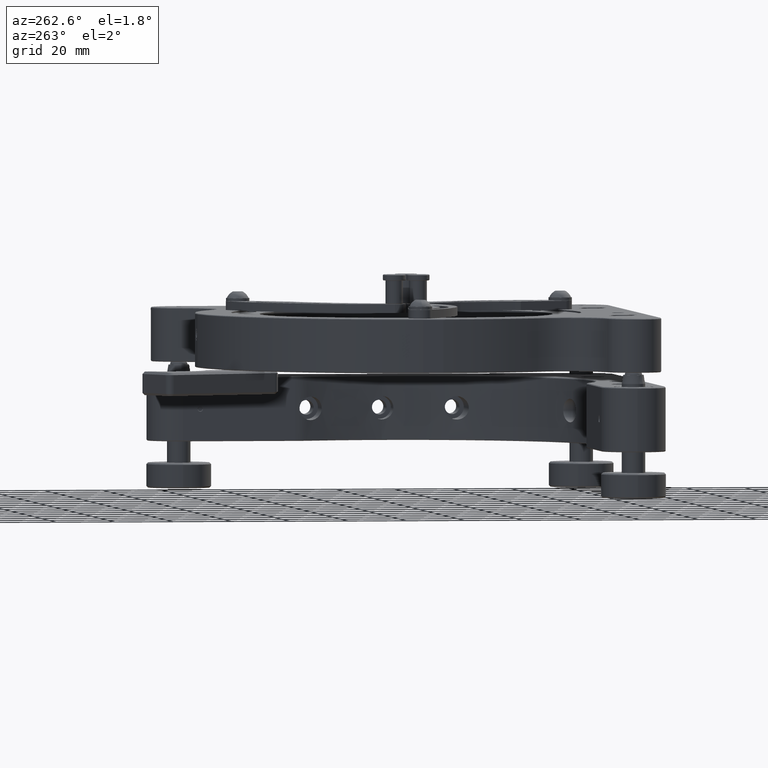
[diagram: clean part render]
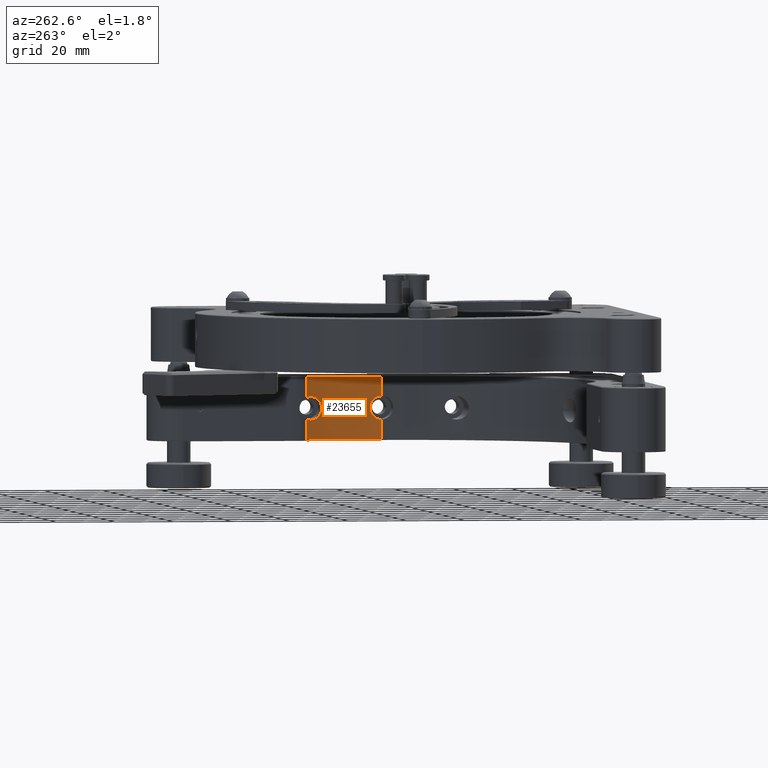
[diagram: same view with one face highlighted and labeled with its STEP entity id]
A machine part, auxiliary view. The second image highlights one B-rep face of the part: STEP entity #23655.
In plain terms, the highlighted cylindrical surface (partial cylindrical patch) has radius 64.5 mm, axis along (0, 0, 1).
Its self-contained STEP definition (entity closure, byte-faithful):
#487 = CARTESIAN_POINT ( 'NONE',  ( 97.33597603896326689, 19.72366855535915064, 70.80497146784718154 ) ) ;
#494 = EDGE_CURVE ( 'NONE', #23611, #5543, #32807, .T. ) ;
#596 = CARTESIAN_POINT ( 'NONE',  ( 97.36688447283495407, 17.71521029692332050, 78.03580865207216277 ) ) ;
#629 = CARTESIAN_POINT ( 'NONE',  ( 93.70315890078724408, 39.14440175768673669, 65.51338114083411313 ) ) ;
#697 = CARTESIAN_POINT ( 'NONE',  ( 97.24438258783752076, 21.68891724327834325, 66.80892322483434498 ) ) ;
#830 = CARTESIAN_POINT ( 'NONE',  ( 93.10583904378145803, 40.77106586904643848, 63.83050261811933268 ) ) ;
#910 = EDGE_CURVE ( 'NONE', #27738, #38953, #20377, .T. ) ;
#1256 = CARTESIAN_POINT ( 'NONE',  ( 92.73399944228148684, 41.72040749266445658, 63.45334916810095649 ) ) ;
#1497 = AXIS2_PLACEMENT_3D ( 'NONE', #30829, #29997, #5169 ) ;
#1674 = CARTESIAN_POINT ( 'NONE',  ( 91.73936769431148264, 44.06441748304114014, 63.57022238046342011 ) ) ;
#1926 = EDGE_CURVE ( 'NONE', #39116, #10374, #16203, .T. ) ;
#2338 = DIRECTION ( 'NONE',  ( 0.000000000000000000, 0.000000000000000000, 1.000000000000000000 ) ) ;
#2685 = CARTESIAN_POINT ( 'NONE',  ( 92.32485282023141338, 42.71521029692335958, 63.33580865207213861 ) ) ;
#2737 = EDGE_CURVE ( 'NONE', #10374, #24506, #28826, .T. ) ;
#3435 = CARTESIAN_POINT ( 'NONE',  ( 97.33615885697525982, 19.71786882270308183, 63.86325062851250323 ) ) ;
#3573 = CARTESIAN_POINT ( 'NONE',  ( 93.48426500526670679, 39.75661668239453661, 70.04046272130622697 ) ) ;
#3635 = CARTESIAN_POINT ( 'NONE',  ( 97.36526029729968457, 18.24099732529743889, 71.30986845294505372 ) ) ;
#3653 = EDGE_CURVE ( 'NONE', #38953, #35598, #23302, .T. ) ;
#3851 = CARTESIAN_POINT ( 'NONE',  ( 97.34303291790808998, 19.48559092561556483, 63.73947585673759875 ) ) ;
#3988 = CARTESIAN_POINT ( 'NONE',  ( 93.54824477278255301, 39.57953871605402441, 64.83788173928552112 ) ) ;
#4037 = EDGE_CURVE ( 'NONE', #5543, #27792, #22082, .T. ) ;
#4054 = DIRECTION ( 'NONE',  ( 1.000000000000000000, 0.000000000000000000, 0.000000000000000000 ) ) ;
#4060 = CARTESIAN_POINT ( 'NONE',  ( 97.29683304081559925, 20.72616271347974504, 64.68965042615795369 ) ) ;
#4191 = CARTESIAN_POINT ( 'NONE',  ( 93.27059021418074281, 40.33591887724991665, 64.11000018156755687 ) ) ;
#4973 = VERTEX_POINT ( 'NONE', #6901 ) ;
#5134 = CARTESIAN_POINT ( 'NONE',  ( 91.73936769431148264, 44.06441748304114014, 56.33580865207213151 ) ) ;
#5169 = DIRECTION ( 'NONE',  ( 1.000000000000000000, -1.775065882394872472E-15, 0.000000000000000000 ) ) ;
#5543 = VERTEX_POINT ( 'NONE', #8030 ) ;
#6381 = CARTESIAN_POINT ( 'NONE',  ( 97.34289550239024891, 19.49056832828132357, 70.92968610241757688 ) ) ;
#6432 = DIRECTION ( 'NONE',  ( -0.000000000000000000, -0.000000000000000000, -1.000000000000000000 ) ) ;
#6504 = CARTESIAN_POINT ( 'NONE',  ( 91.93527675884995176, 43.62342629612098932, 71.23807526134488910 ) ) ;
#6586 = CARTESIAN_POINT ( 'NONE',  ( 97.24274742568391616, 21.71499393137542455, 67.06862893561323347 ) ) ;
#6644 = CARTESIAN_POINT ( 'NONE',  ( 91.73936769431148264, 44.06441748304114014, 56.33580865207213151 ) ) ;
#6724 = CARTESIAN_POINT ( 'NONE',  ( 93.65557037412668251, 39.27933406109144698, 69.40097430472835072 ) ) ;
#6733 = ORIENTED_EDGE ( 'NONE', *, *, #24687, .T. ) ;
#6792 = CARTESIAN_POINT ( 'NONE',  ( 97.28843232563455956, 20.89879488553814113, 69.77158457411893266 ) ) ;
#6901 = CARTESIAN_POINT ( 'NONE',  ( 92.32485282023141338, 42.71521029692335958, 71.33580865207211730 ) ) ;
#6913 = CARTESIAN_POINT ( 'NONE',  ( 92.22854487460270434, 42.94426128823512556, 71.33580865207213151 ) ) ;
#6994 = CARTESIAN_POINT ( 'NONE',  ( 97.35907529697590235, 18.75146955088105827, 63.46343406596731285 ) ) ;
#7200 = CARTESIAN_POINT ( 'NONE',  ( 97.32090105054606965, 20.16008635469260568, 70.51253279501902682 ) ) ;
#7339 = CARTESIAN_POINT ( 'NONE',  ( 93.80574214779633735, 38.85069989088842846, 66.26868261650199088 ) ) ;
#7537 = CARTESIAN_POINT ( 'NONE',  ( 93.77718006205675749, 38.93309011958240262, 66.00634160781993387 ) ) ;
#8030 = CARTESIAN_POINT ( 'NONE',  ( 97.36688447283495407, 17.71521029692332050, 63.33580865207213861 ) ) ;
#10067 = CARTESIAN_POINT ( 'NONE',  ( 92.53434234528306490, 42.21246984676311342, 71.31207127045450989 ) ) ;
#10084 = CARTESIAN_POINT ( 'NONE',  ( 32.86688447283495407, 17.71521029692332050, 78.03580865207216277 ) ) ;
#10275 = CARTESIAN_POINT ( 'NONE',  ( 93.54748417199665766, 39.58163633028227224, 69.83598242132393352 ) ) ;
#10374 = VERTEX_POINT ( 'NONE', #35825 ) ;
#10691 = CARTESIAN_POINT ( 'NONE',  ( 93.01622811213678688, 41.00406347309240118, 70.96022873603281766 ) ) ;
#10889 = CARTESIAN_POINT ( 'NONE',  ( 93.84326545416419663, 38.74219908575376081, 66.79879787930831014 ) ) ;
#12627 = ORIENTED_EDGE ( 'NONE', *, *, #494, .T. ) ;
#12641 = CARTESIAN_POINT ( 'NONE',  ( 97.35445273543653855, 19.00420426814899955, 63.54023864383997733 ) ) ;
#12957 = CARTESIAN_POINT ( 'NONE',  ( 92.32485282023141338, 42.71521029692335958, 71.33580865207211730 ) ) ;
#13385 = CARTESIAN_POINT ( 'NONE',  ( 93.10562244386692043, 40.77162711468669443, 70.84138427309692077 ) ) ;
#13456 = CARTESIAN_POINT ( 'NONE',  ( 97.31285161474882273, 20.36122435373946971, 70.34690760459673697 ) ) ;
#14186 = CARTESIAN_POINT ( 'NONE',  ( 91.73936769431148264, 44.06441748304114014, 78.03580865207216277 ) ) ;
#14248 = ORIENTED_EDGE ( 'NONE', *, *, #4037, .T. ) ;
#14795 = VECTOR ( 'NONE', #2338, 1000.000000000000000 ) ;
#16203 = B_SPLINE_CURVE_WITH_KNOTS ( 'NONE', 3,
 ( #40228, #23596, #30268, #1674 ),
 .UNSPECIFIED., .F., .F.,
 ( 4, 4 ),
 ( 0.01694788674403596013, 0.01843579961038265685 ),
 .UNSPECIFIED. ) ;
#16312 = CARTESIAN_POINT ( 'NONE',  ( 93.34794876504521710, 40.12795636861265081, 64.27400160332787493 ) ) ;
#16382 = CARTESIAN_POINT ( 'NONE',  ( 97.27346242142264998, 21.18850204048765207, 69.33692325133341683 ) ) ;
#16427 = B_SPLINE_CURVE_WITH_KNOTS ( 'NONE', 3,
 ( #35429, #22348, #6504, #19227, #6913, #12957 ),
 .UNSPECIFIED., .F., .F.,
 ( 4, 2, 4 ),
 ( 0.002508315295065936638, 0.003252434585197021277, 0.003996553875328105916 ),
 .UNSPECIFIED. ) ;
#16519 = CARTESIAN_POINT ( 'NONE',  ( 92.32485282023141338, 42.71521029692335958, 71.33580865207211730 ) ) ;
#16537 = DIRECTION ( 'NONE',  ( 1.000000000000000000, 0.000000000000000000, 0.000000000000000000 ) ) ;
#16594 = CARTESIAN_POINT ( 'NONE',  ( 97.35434652504066833, 19.00947939111198792, 71.12958233792068086 ) ) ;
#16786 = CYLINDRICAL_SURFACE ( 'NONE', #40444, 64.50000000000000000 ) ;
#16792 = CARTESIAN_POINT ( 'NONE',  ( 97.28861493340231448, 20.89512011034647898, 64.89520220951939677 ) ) ;
#17138 = CARTESIAN_POINT ( 'NONE',  ( 93.01825684546152218, 40.99884110113458036, 63.71373495950778931 ) ) ;
#18013 = ORIENTED_EDGE ( 'NONE', *, *, #3653, .T. ) ;
#19227 = CARTESIAN_POINT ( 'NONE',  ( 92.13135334148707045, 43.17170953056108829, 71.31627965946955783 ) ) ;
#19304 = CARTESIAN_POINT ( 'NONE',  ( 97.35896688285039602, 18.75839887665329897, 71.20638495118336664 ) ) ;
#19322 = EDGE_CURVE ( 'NONE', #24506, #23611, #27517, .T. ) ;
#19339 = ORIENTED_EDGE ( 'NONE', *, *, #19322, .T. ) ;
#19446 = CARTESIAN_POINT ( 'NONE',  ( 92.43074162061316201, 42.46337297926568510, 63.33580865207213861 ) ) ;
#19512 = CARTESIAN_POINT ( 'NONE',  ( 97.25059719177903617, 21.58692141310274337, 66.29763324213487863 ) ) ;
#19724 = CARTESIAN_POINT ( 'NONE',  ( 97.36688447283495407, 17.71521029692334537, 71.33580865207211730 ) ) ;
#20272 = CARTESIAN_POINT ( 'NONE',  ( 93.65751694506080582, 39.27385934315115179, 65.27931193734916349 ) ) ;
#20377 = CIRCLE ( 'NONE', #26341, 64.50000000000000000 ) ;
#21137 = CARTESIAN_POINT ( 'NONE',  ( 97.36688447283495407, 17.71521029692332050, 56.33580865207213151 ) ) ;
#21324 = B_SPLINE_CURVE_WITH_KNOTS ( 'NONE', 3,
 ( #16519, #29230, #10067, #23591, #39408, #10691, #13385, #29851, #38585, #3573, #10275, #6724, #23390, #38793, #29435, #36065, #22975, #26719, #10889, #7339, #7537, #629, #20272, #3988, #32946, #16312, #4191, #830, #17138, #23189, #1256, #35652, #19446, #32138 ),
 .UNSPECIFIED., .F., .F.,
 ( 4, 2, 2, 2, 2, 2, 2, 2, 2, 2, 2, 2, 2, 2, 2, 2, 4 ),
 ( 0.003996553875328105916, 0.004806012179622346642, 0.005615470483916588235, 0.006424928788210828960, 0.007234387092505069686, 0.008043845396799309544, 0.008853303701093551137, 0.009662762005387792730, 0.01047222030968203432, 0.01128167861397627418, 0.01209113691827051404, 0.01290059522256475563, 0.01371005352685899722, 0.01451951183115323882, 0.01532897013544748041, 0.01613842843974171853, 0.01694788674403596013 ),
 .UNSPECIFIED. ) ;
#22082 = B_SPLINE_CURVE_WITH_KNOTS ( 'NONE', 3,
 ( #32405, #23050, #25762, #6994, #12641, #3851, #3435, #22639, #32616, #4060, #16792, #22842, #25546, #38235, #19512, #697, #6586, #32200, #25347, #38030, #35299, #25975, #16382, #6792, #22226, #13456, #7200, #487, #6381, #16594, #19304, #3635, #38650, #19724 ),
 .UNSPECIFIED., .F., .F.,
 ( 4, 2, 2, 2, 2, 2, 2, 2, 2, 2, 2, 2, 2, 2, 2, 2, 4 ),
 ( 0.01250882470707808010, 0.01329044715167120201, 0.01407206959626432392, 0.01485369204085744757, 0.01563531448545056948, 0.01641693693004369139, 0.01719855937463681331, 0.01798018181922993522, 0.01876180426382305713, 0.01954342670841617904, 0.02032504915300930443, 0.02110667159760242634, 0.02188829404219554825, 0.02266991648678867016, 0.02345153893138179207, 0.02423316137597491399, 0.02501478382056803590 ),
 .UNSPECIFIED. ) ;
#22209 = CARTESIAN_POINT ( 'NONE',  ( 91.73936769431148264, 44.06441748304114014, 56.63580865207215709 ) ) ;
#22221 = DIRECTION ( 'NONE',  ( 0.000000000000000000, 0.000000000000000000, 1.000000000000000000 ) ) ;
#22226 = CARTESIAN_POINT ( 'NONE',  ( 97.29665160764096754, 20.73003669328165088, 69.97757493442654209 ) ) ;
#22348 = CARTESIAN_POINT ( 'NONE',  ( 91.83601783014412945, 43.84847043537600797, 71.17876861465904881 ) ) ;
#22413 = ORIENTED_EDGE ( 'NONE', *, *, #2737, .T. ) ;
#22507 = EDGE_LOOP ( 'NONE', ( #19339, #12627, #14248, #6733, #34628, #18013, #25700, #28546, #29169, #22413 ) ) ;
#22639 = CARTESIAN_POINT ( 'NONE',  ( 97.32106970950795244, 20.15569923668345709, 64.15566492375180019 ) ) ;
#22842 = CARTESIAN_POINT ( 'NONE',  ( 97.27360846643252046, 21.18581346756074169, 65.32999214478731176 ) ) ;
#22975 = CARTESIAN_POINT ( 'NONE',  ( 93.85242910224300772, 38.71552806512725908, 67.61319427776207647 ) ) ;
#23027 = VECTOR ( 'NONE', #40739, 1000.000000000000000 ) ;
#23050 = CARTESIAN_POINT ( 'NONE',  ( 97.36688447283493986, 17.97624265891306905, 63.33580865207213861 ) ) ;
#23189 = CARTESIAN_POINT ( 'NONE',  ( 92.83222322577907448, 41.47385524948430202, 63.52472236377885650 ) ) ;
#23302 = LINE ( 'NONE', #6644, #28430 ) ;
#23390 = CARTESIAN_POINT ( 'NONE',  ( 93.70130350500934924, 39.14967538807447056, 69.16876466821163660 ) ) ;
#23591 = CARTESIAN_POINT ( 'NONE',  ( 92.73506032146656253, 41.71776797251092717, 71.21762796523488248 ) ) ;
#23596 = CARTESIAN_POINT ( 'NONE',  ( 92.13021239508017857, 43.17812726643396815, 63.33580865207213861 ) ) ;
#23611 = VERTEX_POINT ( 'NONE', #29498 ) ;
#23655 = ADVANCED_FACE ( 'NONE', ( #25759 ), #16786, .F. ) ;
#24506 = VERTEX_POINT ( 'NONE', #22209 ) ;
#24687 = EDGE_CURVE ( 'NONE', #27792, #27738, #36733, .T. ) ;
#24943 = EDGE_CURVE ( 'NONE', #4973, #39116, #21324, .T. ) ;
#25347 = CARTESIAN_POINT ( 'NONE',  ( 97.24433830200507600, 21.68962979139819680, 67.85723856852391123 ) ) ;
#25546 = CARTESIAN_POINT ( 'NONE',  ( 97.26677941125846871, 21.30876817215991181, 65.55959415267633972 ) ) ;
#25700 = ORIENTED_EDGE ( 'NONE', *, *, #30317, .T. ) ;
#25706 = DIRECTION ( 'NONE',  ( 0.000000000000000000, 0.000000000000000000, 1.000000000000000000 ) ) ;
#25759 = FACE_OUTER_BOUND ( 'NONE', #22507, .T. ) ;
#25762 = CARTESIAN_POINT ( 'NONE',  ( 97.36529984912480984, 18.23571436645942256, 63.36111448897987941 ) ) ;
#25975 = CARTESIAN_POINT ( 'NONE',  ( 97.26664181414328425, 21.31122836592892256, 69.10711022614357546 ) ) ;
#26341 = AXIS2_PLACEMENT_3D ( 'NONE', #10084, #25706, #16537 ) ;
#26719 = CARTESIAN_POINT ( 'NONE',  ( 93.85264610686361664, 38.71489786670637301, 67.06766465841158720 ) ) ;
#27517 = CIRCLE ( 'NONE', #1497, 64.50000000000000000 ) ;
#27738 = VERTEX_POINT ( 'NONE', #596 ) ;
#27792 = VERTEX_POINT ( 'NONE', #32714 ) ;
#28305 = VECTOR ( 'NONE', #38440, 1000.000000000000000 ) ;
#28430 = VECTOR ( 'NONE', #6432, 1000.000000000000000 ) ;
#28546 = ORIENTED_EDGE ( 'NONE', *, *, #24943, .T. ) ;
#28826 = LINE ( 'NONE', #5134, #23027 ) ;
#29169 = ORIENTED_EDGE ( 'NONE', *, *, #1926, .T. ) ;
#29230 = CARTESIAN_POINT ( 'NONE',  ( 92.42961729468140675, 42.46604698469223393, 71.33580865207214572 ) ) ;
#29435 = CARTESIAN_POINT ( 'NONE',  ( 93.80474129081275692, 38.85358693448910117, 68.41304293859464281 ) ) ;
#29498 = CARTESIAN_POINT ( 'NONE',  ( 97.36688447283495407, 17.71521029692332050, 56.63580865207215709 ) ) ;
#29851 = CARTESIAN_POINT ( 'NONE',  ( 93.27005300704756507, 40.33734856554411152, 70.56262590866394646 ) ) ;
#29997 = DIRECTION ( 'NONE',  ( -0.000000000000000000, -0.000000000000000000, -1.000000000000000000 ) ) ;
#30268 = CARTESIAN_POINT ( 'NONE',  ( 91.93399407244228883, 43.62956044540702294, 63.41441337814855927 ) ) ;
#30317 = EDGE_CURVE ( 'NONE', #35598, #4973, #16427, .T. ) ;
#30829 = CARTESIAN_POINT ( 'NONE',  ( 32.86688447283495407, 17.71521029692332050, 56.63580865207215709 ) ) ;
#32138 = CARTESIAN_POINT ( 'NONE',  ( 92.32485282023141338, 42.71521029692335958, 63.33580865207213861 ) ) ;
#32200 = CARTESIAN_POINT ( 'NONE',  ( 97.24272070290034264, 21.71542400699218334, 67.59647011277360207 ) ) ;
#32400 = CARTESIAN_POINT ( 'NONE',  ( 97.36688447283495407, 17.71521029692332050, 56.33580865207213151 ) ) ;
#32405 = CARTESIAN_POINT ( 'NONE',  ( 97.36688447283495407, 17.71521029692332050, 63.33580865207213861 ) ) ;
#32616 = CARTESIAN_POINT ( 'NONE',  ( 97.31301878847636999, 20.35715630275003463, 64.32115956575435689 ) ) ;
#32714 = CARTESIAN_POINT ( 'NONE',  ( 97.36688447283495407, 17.71521029692334537, 71.33580865207211730 ) ) ;
#32807 = LINE ( 'NONE', #32400, #28305 ) ;
#32946 = CARTESIAN_POINT ( 'NONE',  ( 93.48633120703190968, 39.75093134326883160, 64.63736547530893972 ) ) ;
#34628 = ORIENTED_EDGE ( 'NONE', *, *, #910, .T. ) ;
#35299 = CARTESIAN_POINT ( 'NONE',  ( 97.25512803072226120, 21.51181181699377731, 68.62214924333153476 ) ) ;
#35429 = CARTESIAN_POINT ( 'NONE',  ( 91.73936769431148264, 44.06441748304114014, 71.10139492368097081 ) ) ;
#35498 = CARTESIAN_POINT ( 'NONE',  ( 32.86688447283495407, 17.71521029692332050, 56.33580865207213151 ) ) ;
#35598 = VERTEX_POINT ( 'NONE', #40720 ) ;
#35652 = CARTESIAN_POINT ( 'NONE',  ( 92.53369730853088981, 42.21403461976339599, 63.35938473042313035 ) ) ;
#35825 = CARTESIAN_POINT ( 'NONE',  ( 91.73936769431148264, 44.06441748304114014, 63.57022238046342011 ) ) ;
#36065 = CARTESIAN_POINT ( 'NONE',  ( 93.84263899917004892, 38.74401721467486936, 67.88553058619829983 ) ) ;
#36733 = LINE ( 'NONE', #21137, #14795 ) ;
#38030 = CARTESIAN_POINT ( 'NONE',  ( 97.25050850632582922, 21.58839092259680825, 68.36846121549334043 ) ) ;
#38235 = CARTESIAN_POINT ( 'NONE',  ( 97.25525298177383604, 21.50969669691866670, 66.04334236207111530 ) ) ;
#38440 = DIRECTION ( 'NONE',  ( 0.000000000000000000, 0.000000000000000000, 1.000000000000000000 ) ) ;
#38585 = CARTESIAN_POINT ( 'NONE',  ( 93.34568516660084470, 40.13406585885749678, 70.40274901666953156 ) ) ;
#38650 = CARTESIAN_POINT ( 'NONE',  ( 97.36688447283495407, 17.97950727119241776, 71.33580865207213151 ) ) ;
#38793 = CARTESIAN_POINT ( 'NONE',  ( 93.77621885675081614, 38.93585631994250207, 68.67343732251879374 ) ) ;
#38953 = VERTEX_POINT ( 'NONE', #14186 ) ;
#39116 = VERTEX_POINT ( 'NONE', #2685 ) ;
#39408 = CARTESIAN_POINT ( 'NONE',  ( 92.83136930204973680, 41.47599272652453806, 71.14747288321045460 ) ) ;
#40228 = CARTESIAN_POINT ( 'NONE',  ( 92.32485282023141338, 42.71521029692335958, 63.33580865207213861 ) ) ;
#40444 = AXIS2_PLACEMENT_3D ( 'NONE', #35498, #22221, #4054 ) ;
#40720 = CARTESIAN_POINT ( 'NONE',  ( 91.73936769431148264, 44.06441748304114014, 71.10139492368097081 ) ) ;
#40739 = DIRECTION ( 'NONE',  ( -0.000000000000000000, -0.000000000000000000, -1.000000000000000000 ) ) ;